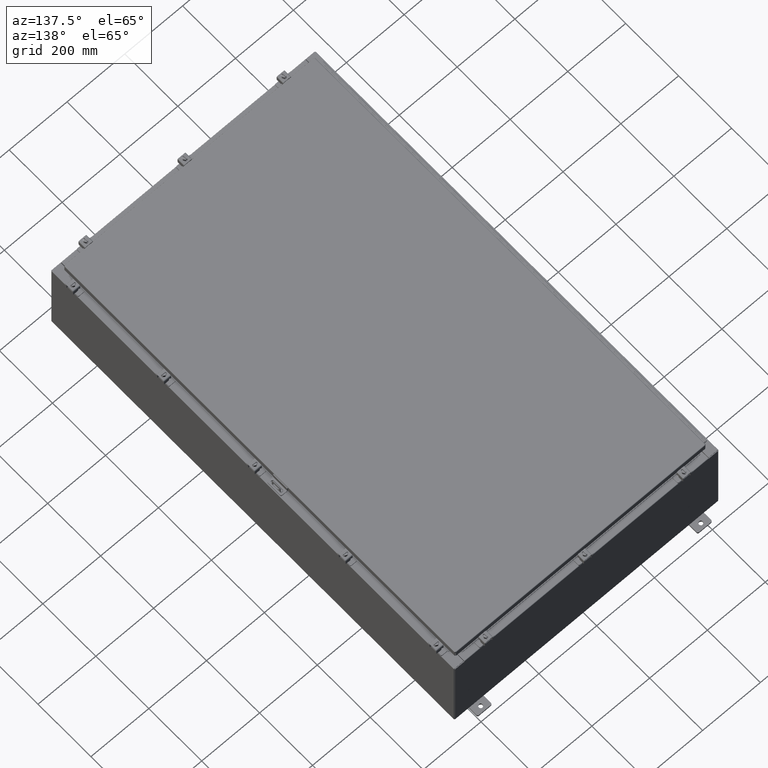
[diagram: clean part render]
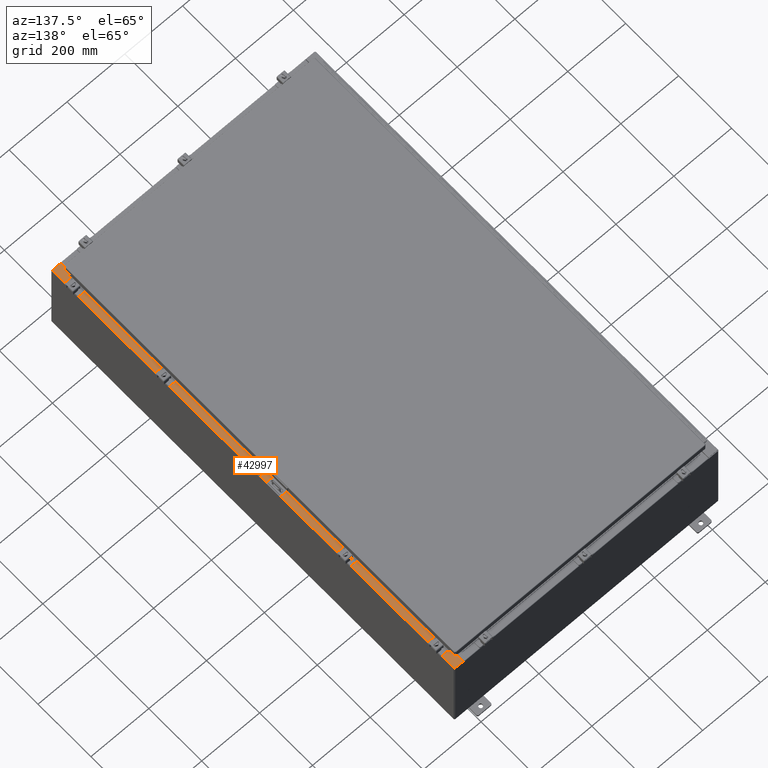
[diagram: same view with one face highlighted and labeled with its STEP entity id]
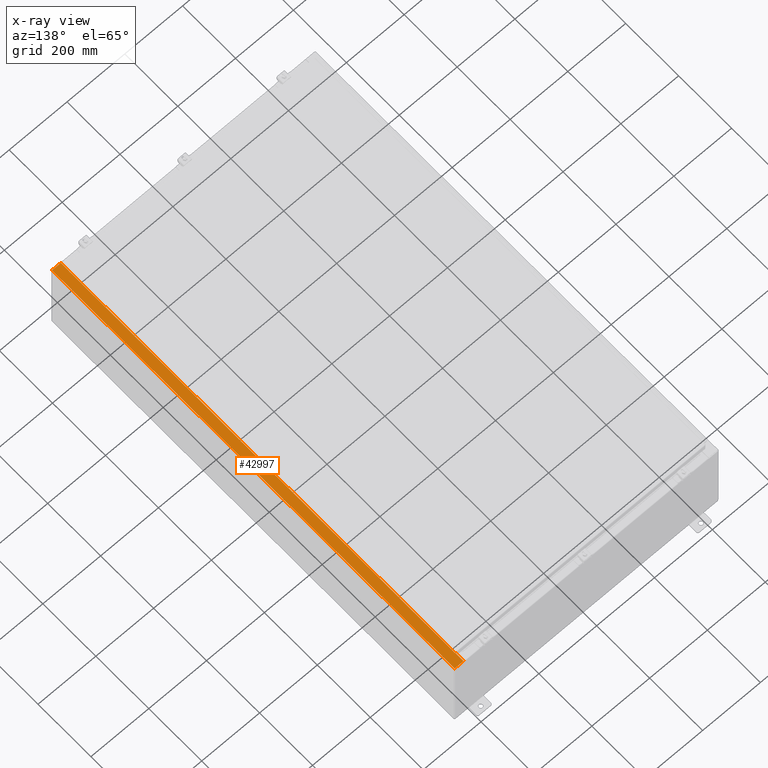
[diagram: x-ray of the same camera — body ghosted, the highlighted face saturated]
A machine part, auxiliary view. The second image highlights one B-rep face of the part: STEP entity #42997.
The next image is the same camera in x-ray: the body ghosted, the highlighted face saturated — about 0% of this face is hidden behind the body in this view.
In plain terms, the highlighted planar face has unit normal (-0, 0, -1).
Its self-contained STEP definition (entity closure, byte-faithful):
#596 = ORIENTED_EDGE ( 'NONE', *, *, #30907, .F. ) ;
#2414 = DIRECTION ( 'NONE',  ( -1.000000000000000000, 0.0000000000000000000, 0.0000000000000000000 ) ) ;
#3775 = DIRECTION ( 'NONE',  ( -0.0000000000000000000, -1.000000000000000000, -0.0000000000000000000 ) ) ;
#5139 = CARTESIAN_POINT ( 'NONE',  ( 16.75005000000004100, -28.59375000000001100, 11.92530000000000900 ) ) ;
#6259 = DIRECTION ( 'NONE',  ( 7.132762385546384700E-015, 0.0000000000000000000, 1.000000000000000000 ) ) ;
#6443 = VECTOR ( 'NONE', #22096, 39.37007874015748100 ) ;
#7264 = VERTEX_POINT ( 'NONE', #57287 ) ;
#7489 = CARTESIAN_POINT ( 'NONE',  ( 8.532114493236880700E-014, 0.0000000000000000000, 11.92530000000013000 ) ) ;
#7800 = CARTESIAN_POINT ( 'NONE',  ( 16.75005000000004100, -28.61242500000000900, 11.92530000000000900 ) ) ;
#7885 = CARTESIAN_POINT ( 'NONE',  ( 16.75005000000004100, 28.63109999999999600, 11.92530000000000900 ) ) ;
#9079 = CARTESIAN_POINT ( 'NONE',  ( 16.75005000000004100, 28.63109999999999600, 11.92530000000000900 ) ) ;
#9111 = ORIENTED_EDGE ( 'NONE', *, *, #62090, .F. ) ;
#9144 = VECTOR ( 'NONE', #25959, 39.37007874015748100 ) ;
#9161 = DIRECTION ( 'NONE',  ( -1.000000000000000000, 8.681145560799821800E-014, 0.0000000000000000000 ) ) ;
#9481 = VERTEX_POINT ( 'NONE', #16899 ) ;
#9698 = EDGE_CURVE ( 'NONE', #24265, #24659, #26326, .T. ) ;
#10269 = EDGE_LOOP ( 'NONE', ( #596, #25997, #25216, #49843, #20494, #61677, #38062, #59782, #45309, #30954, #15114, #9111 ) ) ;
#11218 = CARTESIAN_POINT ( 'NONE',  ( 16.69970000000003900, 0.0000000000000000000, 11.92530000000000900 ) ) ;
#11619 = CARTESIAN_POINT ( 'NONE',  ( 17.91230000000004100, -29.92530000000001100, 11.92530000000000400 ) ) ;
#12239 = CARTESIAN_POINT ( 'NONE',  ( 16.75005000000004100, -28.59375000000001100, 11.92530000000000900 ) ) ;
#12353 = PLANE ( 'NONE',  #52955 ) ;
#12662 = DIRECTION ( 'NONE',  ( 1.000000000000000000, 0.0000000000000000000, 0.0000000000000000000 ) ) ;
#13740 = VERTEX_POINT ( 'NONE', #37056 ) ;
#14477 = CARTESIAN_POINT ( 'NONE',  ( 16.75005000000004100, -28.63110000000000700, 11.92530000000000900 ) ) ;
#15112 = VECTOR ( 'NONE', #45126, 39.37007874015748100 ) ;
#15114 = ORIENTED_EDGE ( 'NONE', *, *, #33540, .F. ) ;
#15727 = AXIS2_PLACEMENT_3D ( 'NONE', #35269, #6259, #40156 ) ;
#15905 = EDGE_CURVE ( 'NONE', #49892, #9481, #49686, .T. ) ;
#15911 = VECTOR ( 'NONE', #50037, 39.37007874015748100 ) ;
#16899 = CARTESIAN_POINT ( 'NONE',  ( 16.69970000000003900, -29.92530000000001100, 11.92530000000000900 ) ) ;
#17397 = LINE ( 'NONE', #45134, #15911 ) ;
#17938 = LINE ( 'NONE', #12239, #55194 ) ;
#18176 = FACE_OUTER_BOUND ( 'NONE', #10269, .T. ) ;
#19067 = EDGE_CURVE ( 'NONE', #31088, #24659, #50775, .T. ) ;
#19304 = CARTESIAN_POINT ( 'NONE',  ( 16.71270000000004400, -28.59375000000001100, 11.92530000000000900 ) ) ;
#20116 = CARTESIAN_POINT ( 'NONE',  ( 16.69970000000003900, 28.63109999999998900, 11.92530000000000900 ) ) ;
#20494 = ORIENTED_EDGE ( 'NONE', *, *, #60241, .T. ) ;
#20589 = CIRCLE ( 'NONE', #15727, 0.01867499999999949400 ) ;
#22096 = DIRECTION ( 'NONE',  ( 1.000000000000000000, 0.0000000000000000000, -7.132762385546384700E-015 ) ) ;
#23053 = DIRECTION ( 'NONE',  ( -0.0000000000000000000, 1.000000000000000000, -0.0000000000000000000 ) ) ;
#24265 = VERTEX_POINT ( 'NONE', #7885 ) ;
#24659 = VERTEX_POINT ( 'NONE', #20116 ) ;
#25216 = ORIENTED_EDGE ( 'NONE', *, *, #28006, .T. ) ;
#25959 = DIRECTION ( 'NONE',  ( -1.000000000000000000, 0.0000000000000000000, 7.132762385546384700E-015 ) ) ;
#25997 = ORIENTED_EDGE ( 'NONE', *, *, #15905, .T. ) ;
#26326 = LINE ( 'NONE', #9079, #49182 ) ;
#27038 = DIRECTION ( 'NONE',  ( 1.000000000000000000, 0.0000000000000000000, 0.0000000000000000000 ) ) ;
#27070 = VECTOR ( 'NONE', #23053, 39.37007874015748100 ) ;
#28006 = EDGE_CURVE ( 'NONE', #9481, #53503, #42079, .T. ) ;
#28294 = CARTESIAN_POINT ( 'NONE',  ( 16.69970000000003900, 29.92529999999999300, 11.92530000000000900 ) ) ;
#30907 = EDGE_CURVE ( 'NONE', #49892, #52612, #55577, .T. ) ;
#30954 = ORIENTED_EDGE ( 'NONE', *, *, #61727, .F. ) ;
#31088 = VERTEX_POINT ( 'NONE', #28294 ) ;
#32605 = CARTESIAN_POINT ( 'NONE',  ( 16.71270000000004400, -28.59375000000001400, 11.92530000000000900 ) ) ;
#32829 = CARTESIAN_POINT ( 'NONE',  ( 17.91230000000004100, -29.92530000000001100, 11.92530000000000400 ) ) ;
#33540 = EDGE_CURVE ( 'NONE', #56117, #61253, #17938, .T. ) ;
#35269 = CARTESIAN_POINT ( 'NONE',  ( 16.75005000000004100, 28.61242499999999500, 11.92530000000000900 ) ) ;
#35393 = DIRECTION ( 'NONE',  ( 0.0000000000000000000, -1.000000000000000000, 0.0000000000000000000 ) ) ;
#35932 = CARTESIAN_POINT ( 'NONE',  ( 16.69970000000003900, 0.0000000000000000000, 11.92530000000000900 ) ) ;
#36722 = VECTOR ( 'NONE', #35393, 39.37007874015748100 ) ;
#37056 = CARTESIAN_POINT ( 'NONE',  ( 17.91230000000004100, 29.92529999999999300, 11.92530000000000400 ) ) ;
#37383 = CARTESIAN_POINT ( 'NONE',  ( 16.69970000000003900, -28.63110000000000700, 11.92530000000000900 ) ) ;
#38062 = ORIENTED_EDGE ( 'NONE', *, *, #9698, .F. ) ;
#38456 = EDGE_CURVE ( 'NONE', #45559, #7264, #17397, .T. ) ;
#39585 = CARTESIAN_POINT ( 'NONE',  ( 16.71270000000004400, 28.59374999999999600, 11.92530000000000900 ) ) ;
#40156 = DIRECTION ( 'NONE',  ( 1.000000000000000000, 0.0000000000000000000, 0.0000000000000000000 ) ) ;
#41523 = LINE ( 'NONE', #32605, #27070 ) ;
#41684 = DIRECTION ( 'NONE',  ( 7.132762385546384700E-015, 0.0000000000000000000, 1.000000000000000000 ) ) ;
#42079 = LINE ( 'NONE', #51182, #6443 ) ;
#42997 = ADVANCED_FACE ( 'NONE', ( #18176 ), #12353, .F. ) ;
#43313 = VECTOR ( 'NONE', #3775, 39.37007874015748100 ) ;
#45126 = DIRECTION ( 'NONE',  ( 0.0000000000000000000, -1.000000000000000000, 0.0000000000000000000 ) ) ;
#45134 = CARTESIAN_POINT ( 'NONE',  ( 16.71270000000004400, 28.59374999999999600, 11.92530000000000900 ) ) ;
#45309 = ORIENTED_EDGE ( 'NONE', *, *, #38456, .F. ) ;
#45559 = VERTEX_POINT ( 'NONE', #39585 ) ;
#46048 = CIRCLE ( 'NONE', #46930, 0.01867499999999949400 ) ;
#46277 = DIRECTION ( 'NONE',  ( -1.000000000000000000, 0.0000000000000000000, 7.132762385546384700E-015 ) ) ;
#46930 = AXIS2_PLACEMENT_3D ( 'NONE', #7800, #41684, #12662 ) ;
#47900 = EDGE_CURVE ( 'NONE', #7264, #24265, #20589, .T. ) ;
#49182 = VECTOR ( 'NONE', #9161, 39.37007874015748100 ) ;
#49686 = LINE ( 'NONE', #35932, #36722 ) ;
#49843 = ORIENTED_EDGE ( 'NONE', *, *, #59865, .F. ) ;
#49892 = VERTEX_POINT ( 'NONE', #37383 ) ;
#50037 = DIRECTION ( 'NONE',  ( 1.000000000000000000, 0.0000000000000000000, 0.0000000000000000000 ) ) ;
#50209 = CARTESIAN_POINT ( 'NONE',  ( 8.532114493236880700E-014, 29.92529999999999300, 11.92530000000013000 ) ) ;
#50775 = LINE ( 'NONE', #11218, #15112 ) ;
#51182 = CARTESIAN_POINT ( 'NONE',  ( 8.532114493236880700E-014, -29.92530000000001100, 11.92530000000013000 ) ) ;
#52612 = VERTEX_POINT ( 'NONE', #14477 ) ;
#52955 = AXIS2_PLACEMENT_3D ( 'NONE', #7489, #60823, #46277 ) ;
#53503 = VERTEX_POINT ( 'NONE', #11619 ) ;
#54765 = LINE ( 'NONE', #32829, #43313 ) ;
#55194 = VECTOR ( 'NONE', #2414, 39.37007874015748100 ) ;
#55577 = LINE ( 'NONE', #56237, #57115 ) ;
#56117 = VERTEX_POINT ( 'NONE', #5139 ) ;
#56237 = CARTESIAN_POINT ( 'NONE',  ( 16.69970000000003900, -28.63110000000000700, 11.92530000000000900 ) ) ;
#57115 = VECTOR ( 'NONE', #27038, 39.37007874015748100 ) ;
#57287 = CARTESIAN_POINT ( 'NONE',  ( 16.75005000000004100, 28.59374999999999600, 11.92530000000000900 ) ) ;
#59782 = ORIENTED_EDGE ( 'NONE', *, *, #47900, .F. ) ;
#59865 = EDGE_CURVE ( 'NONE', #13740, #53503, #54765, .T. ) ;
#60241 = EDGE_CURVE ( 'NONE', #13740, #31088, #60838, .T. ) ;
#60823 = DIRECTION ( 'NONE',  ( -7.132762385546384700E-015, 0.0000000000000000000, -1.000000000000000000 ) ) ;
#60838 = LINE ( 'NONE', #50209, #9144 ) ;
#61253 = VERTEX_POINT ( 'NONE', #19304 ) ;
#61677 = ORIENTED_EDGE ( 'NONE', *, *, #19067, .T. ) ;
#61727 = EDGE_CURVE ( 'NONE', #61253, #45559, #41523, .T. ) ;
#62090 = EDGE_CURVE ( 'NONE', #52612, #56117, #46048, .T. ) ;